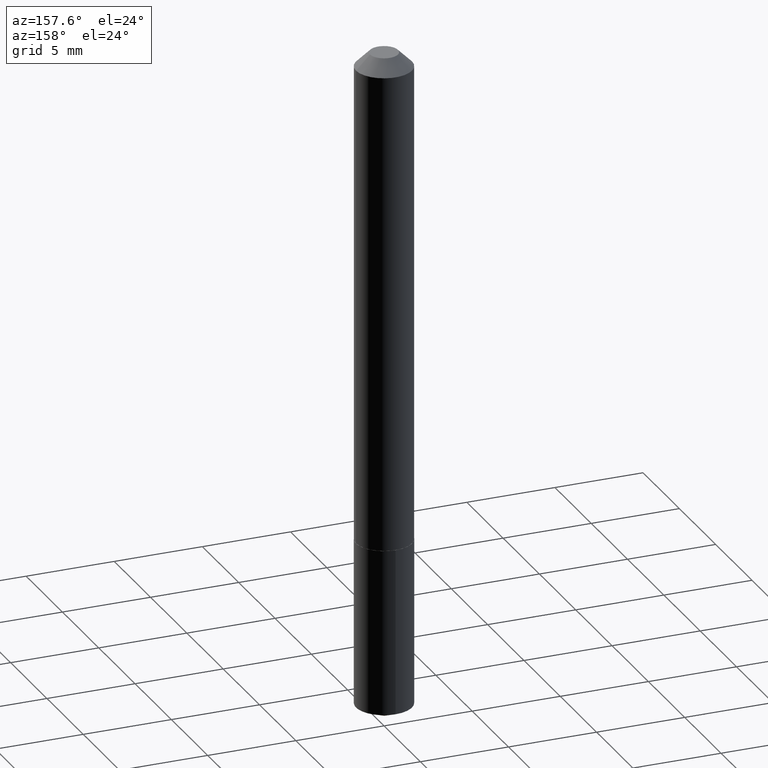
[diagram: clean part render]
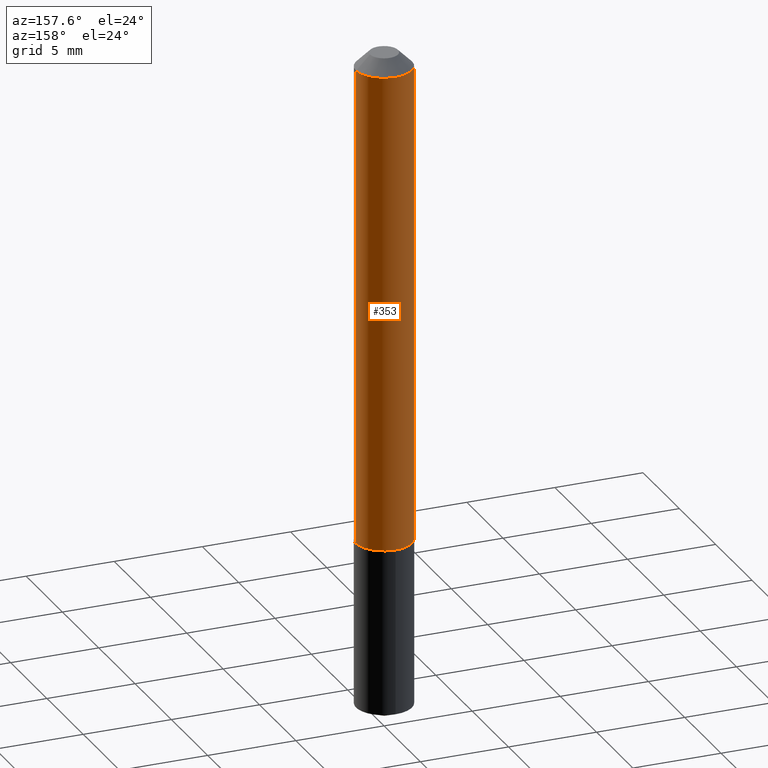
[diagram: same view with one face highlighted and labeled with its STEP entity id]
A machine part, auxiliary view. The second image highlights one B-rep face of the part: STEP entity #353.
In plain terms, the highlighted cylindrical surface (edge-blend (fillet) strip) has radius 1.5875 mm, axis along (-0, 0, 1).
Its self-contained STEP definition (entity closure, byte-faithful):
#13 = DIRECTION ( 'NONE',  ( -2.445468806185136877E-29, 3.491481338843145188E-15, 1.000000000000000000 ) ) ;
#15 = EDGE_CURVE ( 'NONE', #268, #290, #153, .T. ) ;
#20 = EDGE_LOOP ( 'NONE', ( #258, #27, #147, #110 ) ) ;
#22 = CARTESIAN_POINT ( 'NONE',  ( 2.688792952400557567E-29, -3.838883732058038598E-15, -1.099499999999999922 ) ) ;
#27 = ORIENTED_EDGE ( 'NONE', *, *, #312, .T. ) ;
#39 = AXIS2_PLACEMENT_3D ( 'NONE', #317, #315, #132 ) ;
#64 = EDGE_CURVE ( 'NONE', #366, #377, #285, .T. ) ;
#102 = VECTOR ( 'NONE', #13, 39.37007874015748143 ) ;
#105 = CARTESIAN_POINT ( 'NONE',  ( 0.06250000000000006939, -4.364351673553921624E-16, 3.047610484872463374E-30 ) ) ;
#110 = ORIENTED_EDGE ( 'NONE', *, *, #299, .F. ) ;
#111 = AXIS2_PLACEMENT_3D ( 'NONE', #22, #380, #348 ) ;
#132 = DIRECTION ( 'NONE',  ( 1.000000000000000000, -6.982962677686266711E-15, 4.876176775795935793E-29 ) ) ;
#147 = ORIENTED_EDGE ( 'NONE', *, *, #64, .F. ) ;
#153 = CIRCLE ( 'NONE', #111, 0.06250000000000013878 ) ;
#191 = CYLINDRICAL_SURFACE ( 'NONE', #39, 0.06250000000000006939 ) ;
#192 = LINE ( 'NONE', #342, #102 ) ;
#196 = FACE_OUTER_BOUND ( 'NONE', #20, .T. ) ;
#210 = CARTESIAN_POINT ( 'NONE',  ( 7.642090019328601786E-31, -1.091087918388490144E-16, -0.03125000000000020123 ) ) ;
#229 = CARTESIAN_POINT ( 'NONE',  ( 0.06250000000000013878, -4.275318899413431056E-15, -1.099499999999999922 ) ) ;
#233 = VECTOR ( 'NONE', #249, 39.37007874015748143 ) ;
#249 = DIRECTION ( 'NONE',  ( -2.445468806185136877E-29, 3.491481338843145188E-15, 1.000000000000000000 ) ) ;
#251 = CARTESIAN_POINT ( 'NONE',  ( -0.06250000000000013878, -3.394794522207974798E-15, -1.099499999999999922 ) ) ;
#258 = ORIENTED_EDGE ( 'NONE', *, *, #15, .T. ) ;
#268 = VERTEX_POINT ( 'NONE', #229 ) ;
#285 = CIRCLE ( 'NONE', #362, 0.06250000000000001388 ) ;
#290 = VERTEX_POINT ( 'NONE', #251 ) ;
#299 = EDGE_CURVE ( 'NONE', #268, #366, #371, .T. ) ;
#312 = EDGE_CURVE ( 'NONE', #290, #377, #192, .T. ) ;
#314 = CARTESIAN_POINT ( 'NONE',  ( -0.06250000000000001388, -1.529907052098379853E-15, -0.03125000000000020123 ) ) ;
#315 = DIRECTION ( 'NONE',  ( -2.445468806185136597E-29, 3.491481338843145583E-15, 1.000000000000000000 ) ) ;
#317 = CARTESIAN_POINT ( 'NONE',  ( 0.000000000000000000, 0.000000000000000000, 0.000000000000000000 ) ) ;
#337 = CARTESIAN_POINT ( 'NONE',  ( 0.06250000000000001388, -5.455439591942407701E-16, -0.03125000000000020123 ) ) ;
#342 = CARTESIAN_POINT ( 'NONE',  ( -0.06250000000000006939, 4.440892098500631092E-16, -3.074334431409319267E-30 ) ) ;
#348 = DIRECTION ( 'NONE',  ( 1.000000000000000000, -6.982962677686262766E-15, 0.000000000000000000 ) ) ;
#353 = ADVANCED_FACE ( 'NONE', ( #196 ), #191, .T. ) ;
#362 = AXIS2_PLACEMENT_3D ( 'NONE', #210, #388, #387 ) ;
#366 = VERTEX_POINT ( 'NONE', #337 ) ;
#371 = LINE ( 'NONE', #105, #233 ) ;
#377 = VERTEX_POINT ( 'NONE', #314 ) ;
#380 = DIRECTION ( 'NONE',  ( -2.445468806185136597E-29, 3.491481338843145583E-15, 1.000000000000000000 ) ) ;
#387 = DIRECTION ( 'NONE',  ( 1.000000000000000000, -6.982962677686265922E-15, 0.000000000000000000 ) ) ;
#388 = DIRECTION ( 'NONE',  ( -2.445468806185136597E-29, 3.491481338843145583E-15, 1.000000000000000000 ) ) ;